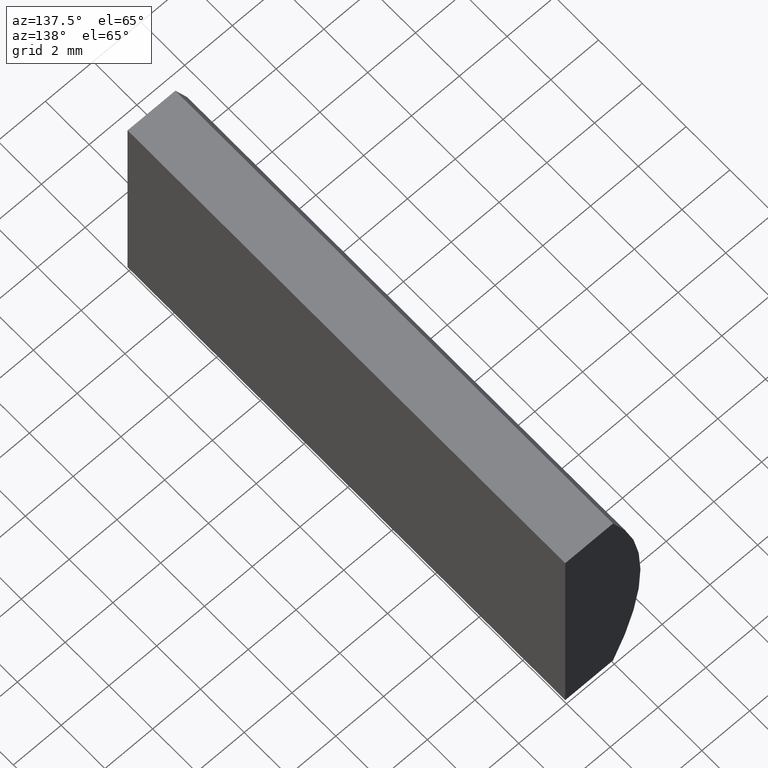
[diagram: clean part render]
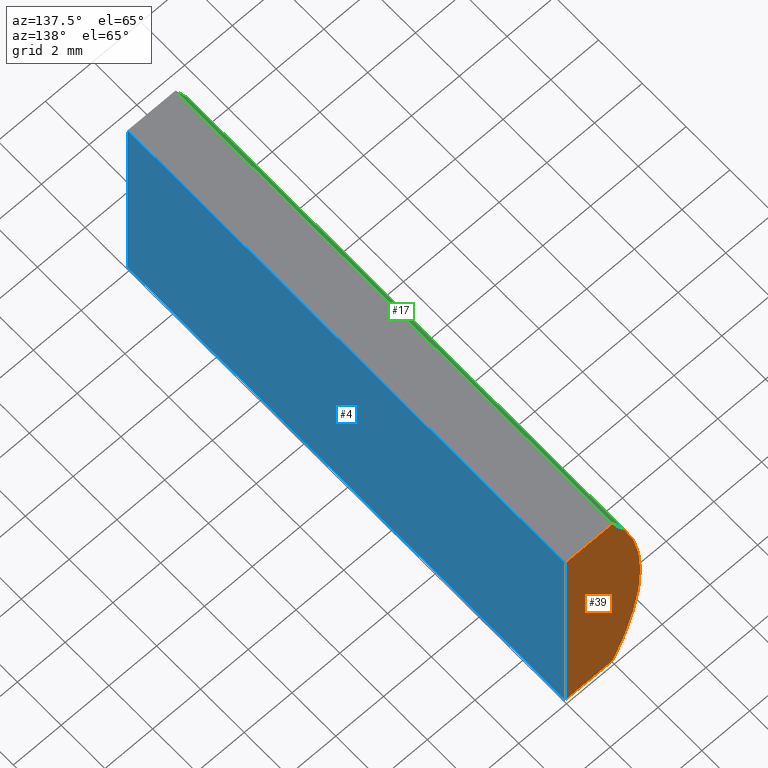
[diagram: same view with three faces highlighted in distinct colors, each labeled with its STEP entity id]
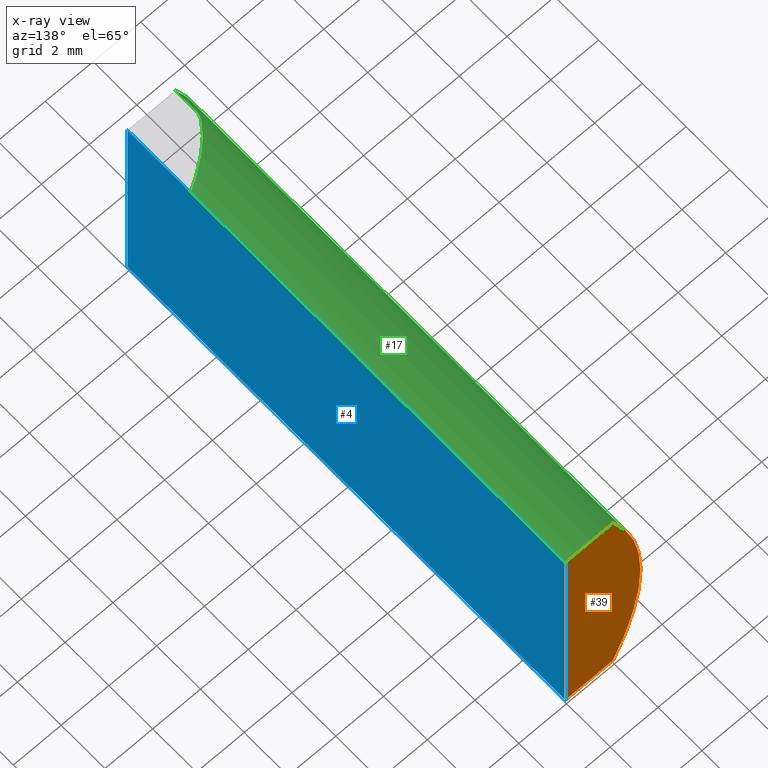
[diagram: x-ray of the same camera — body ghosted, the three highlighted faces saturated]
A machine part, auxiliary view with three faces highlighted in distinct colors.
The next image is the same camera in x-ray (body ghosted, the three faces saturated) — at least one of them is partly hidden behind the body in this view.
Their STEP definitions:

[orange] entity #39 — the highlighted planar face has unit normal (0, 1, 0).
#5 = CIRCLE ( 'NONE', #42, 11.45000000000000100 ) ;
#9 = LINE ( 'NONE', #197, #173 ) ;
#20 = CARTESIAN_POINT ( 'NONE',  ( -3.944795665148738400, 20.00000000000000000, -5.000000000000000000 ) ) ;
#28 = PLANE ( 'NONE',  #97 ) ;
#32 = DIRECTION ( 'NONE',  ( 0.0000000000000000000, -0.0000000000000000000, 1.000000000000000000 ) ) ;
#33 = ORIENTED_EDGE ( 'NONE', *, *, #66, .T. ) ;
#34 = EDGE_CURVE ( 'NONE', #117, #145, #9, .T. ) ;
#35 = ORIENTED_EDGE ( 'NONE', *, *, #34, .T. ) ;
#39 = ADVANCED_FACE ( 'NONE', ( #178 ), #28, .T. ) ;
#40 = DIRECTION ( 'NONE',  ( 0.0000000000000000000, 1.000000000000000000, 0.0000000000000000000 ) ) ;
#42 = AXIS2_PLACEMENT_3D ( 'NONE', #73, #40, #116 ) ;
#43 = CARTESIAN_POINT ( 'NONE',  ( -5.945402443392432600, 20.00000000000000000, 5.000000000000000000 ) ) ;
#46 = CARTESIAN_POINT ( 'NONE',  ( 4.355204334851265500, 20.00000000000000000, 4.286263797015675000E-017 ) ) ;
#49 = EDGE_LOOP ( 'NONE', ( #103, #35, #201, #33 ) ) ;
#53 = DIRECTION ( 'NONE',  ( 0.0000000000000000000, 1.000000000000000000, 0.0000000000000000000 ) ) ;
#60 = EDGE_CURVE ( 'NONE', #145, #70, #170, .T. ) ;
#66 = EDGE_CURVE ( 'NONE', #70, #146, #105, .T. ) ;
#70 = VERTEX_POINT ( 'NONE', #20 ) ;
#72 = CARTESIAN_POINT ( 'NONE',  ( -5.945402443392432600, 20.00000000000000000, -5.000000000000000000 ) ) ;
#73 = CARTESIAN_POINT ( 'NONE',  ( 4.355204334851265500, 20.00000000000000000, 4.286263797015675000E-017 ) ) ;
#76 = CARTESIAN_POINT ( 'NONE',  ( -5.945402443392432600, 20.00000000000000000, -5.000000000000000000 ) ) ;
#97 = AXIS2_PLACEMENT_3D ( 'NONE', #46, #53, #32 ) ;
#103 = ORIENTED_EDGE ( 'NONE', *, *, #166, .T. ) ;
#105 = LINE ( 'NONE', #76, #204 ) ;
#110 = CARTESIAN_POINT ( 'NONE',  ( -3.944795665148738400, 20.00000000000000000, -5.000000000000000000 ) ) ;
#116 = DIRECTION ( 'NONE',  ( 0.0000000000000000000, 0.0000000000000000000, 1.000000000000000000 ) ) ;
#117 = VERTEX_POINT ( 'NONE', #43 ) ;
#119 = VECTOR ( 'NONE', #163, 1000.000000000000000 ) ;
#145 = VERTEX_POINT ( 'NONE', #199 ) ;
#146 = VERTEX_POINT ( 'NONE', #72 ) ;
#163 = DIRECTION ( 'NONE',  ( -3.469446951953614200E-016, -0.0000000000000000000, -1.000000000000000000 ) ) ;
#166 = EDGE_CURVE ( 'NONE', #146, #117, #5, .T. ) ;
#170 = LINE ( 'NONE', #110, #119 ) ;
#173 = VECTOR ( 'NONE', #176, 1000.000000000000000 ) ;
#176 = DIRECTION ( 'NONE',  ( 1.000000000000000000, 0.0000000000000000000, 0.0000000000000000000 ) ) ;
#178 = FACE_OUTER_BOUND ( 'NONE', #49, .T. ) ;
#190 = DIRECTION ( 'NONE',  ( -1.000000000000000000, -0.0000000000000000000, -0.0000000000000000000 ) ) ;
#197 = CARTESIAN_POINT ( 'NONE',  ( -5.945402443392432600, 20.00000000000000000, 5.000000000000000000 ) ) ;
#199 = CARTESIAN_POINT ( 'NONE',  ( -3.944795665148734800, 20.00000000000000000, 5.000000000000000000 ) ) ;
#201 = ORIENTED_EDGE ( 'NONE', *, *, #60, .T. ) ;
#204 = VECTOR ( 'NONE', #190, 1000.000000000000000 ) ;

[blue] entity #4 — the highlighted planar face has unit normal (-1, 0, 0).
#4 = ADVANCED_FACE ( 'NONE', ( #135 ), #16, .F. ) ;
#13 = VECTOR ( 'NONE', #142, 1000.000000000000000 ) ;
#16 = PLANE ( 'NONE',  #196 ) ;
#20 = CARTESIAN_POINT ( 'NONE',  ( -3.944795665148738400, 20.00000000000000000, -5.000000000000000000 ) ) ;
#25 = VERTEX_POINT ( 'NONE', #30 ) ;
#26 = DIRECTION ( 'NONE',  ( -1.000000000000000000, 0.0000000000000000000, 3.469446951953614200E-016 ) ) ;
#29 = EDGE_CURVE ( 'NONE', #145, #136, #86, .T. ) ;
#30 = CARTESIAN_POINT ( 'NONE',  ( -3.944795665148738400, 0.0000000000000000000, -5.000000000000000000 ) ) ;
#37 = EDGE_LOOP ( 'NONE', ( #81, #165, #91, #99 ) ) ;
#50 = EDGE_CURVE ( 'NONE', #136, #25, #83, .T. ) ;
#60 = EDGE_CURVE ( 'NONE', #145, #70, #170, .T. ) ;
#68 = EDGE_CURVE ( 'NONE', #70, #25, #172, .T. ) ;
#70 = VERTEX_POINT ( 'NONE', #20 ) ;
#81 = ORIENTED_EDGE ( 'NONE', *, *, #50, .T. ) ;
#82 = CARTESIAN_POINT ( 'NONE',  ( -3.944795665148738400, 0.0000000000000000000, -5.000000000000000000 ) ) ;
#83 = LINE ( 'NONE', #82, #182 ) ;
#85 = VECTOR ( 'NONE', #130, 1000.000000000000000 ) ;
#86 = LINE ( 'NONE', #151, #13 ) ;
#89 = DIRECTION ( 'NONE',  ( 3.469446951953614200E-016, 0.0000000000000000000, 1.000000000000000000 ) ) ;
#91 = ORIENTED_EDGE ( 'NONE', *, *, #60, .F. ) ;
#96 = CARTESIAN_POINT ( 'NONE',  ( -3.944795665148738400, 20.00000000000000000, -5.000000000000000000 ) ) ;
#99 = ORIENTED_EDGE ( 'NONE', *, *, #29, .T. ) ;
#110 = CARTESIAN_POINT ( 'NONE',  ( -3.944795665148738400, 20.00000000000000000, -5.000000000000000000 ) ) ;
#112 = CARTESIAN_POINT ( 'NONE',  ( -3.944795665148738400, 20.00000000000000000, -5.000000000000000000 ) ) ;
#113 = CARTESIAN_POINT ( 'NONE',  ( -3.944795665148734800, 0.0000000000000000000, 5.000000000000000000 ) ) ;
#119 = VECTOR ( 'NONE', #163, 1000.000000000000000 ) ;
#130 = DIRECTION ( 'NONE',  ( -0.0000000000000000000, -1.000000000000000000, -0.0000000000000000000 ) ) ;
#135 = FACE_OUTER_BOUND ( 'NONE', #37, .T. ) ;
#136 = VERTEX_POINT ( 'NONE', #113 ) ;
#142 = DIRECTION ( 'NONE',  ( -0.0000000000000000000, -1.000000000000000000, -0.0000000000000000000 ) ) ;
#145 = VERTEX_POINT ( 'NONE', #199 ) ;
#151 = CARTESIAN_POINT ( 'NONE',  ( -3.944795665148734800, 20.00000000000000000, 5.000000000000000000 ) ) ;
#162 = DIRECTION ( 'NONE',  ( -3.469446951953614200E-016, -0.0000000000000000000, -1.000000000000000000 ) ) ;
#163 = DIRECTION ( 'NONE',  ( -3.469446951953614200E-016, -0.0000000000000000000, -1.000000000000000000 ) ) ;
#165 = ORIENTED_EDGE ( 'NONE', *, *, #68, .F. ) ;
#170 = LINE ( 'NONE', #110, #119 ) ;
#172 = LINE ( 'NONE', #112, #85 ) ;
#182 = VECTOR ( 'NONE', #162, 1000.000000000000000 ) ;
#196 = AXIS2_PLACEMENT_3D ( 'NONE', #96, #26, #89 ) ;
#199 = CARTESIAN_POINT ( 'NONE',  ( -3.944795665148734800, 20.00000000000000000, 5.000000000000000000 ) ) ;

[green] entity #17 — the highlighted cylindrical surface (partial cylindrical patch) has radius 11.45 mm, axis along (-0, -1, -0).
#2 = LINE ( 'NONE', #203, #44 ) ;
#5 = CIRCLE ( 'NONE', #42, 11.45000000000000100 ) ;
#12 = EDGE_LOOP ( 'NONE', ( #21, #187, #122, #128 ) ) ;
#17 = ADVANCED_FACE ( 'NONE', ( #19 ), #127, .T. ) ;
#19 = FACE_OUTER_BOUND ( 'NONE', #12, .T. ) ;
#21 = ORIENTED_EDGE ( 'NONE', *, *, #132, .T. ) ;
#40 = DIRECTION ( 'NONE',  ( 0.0000000000000000000, 1.000000000000000000, 0.0000000000000000000 ) ) ;
#42 = AXIS2_PLACEMENT_3D ( 'NONE', #73, #40, #116 ) ;
#43 = CARTESIAN_POINT ( 'NONE',  ( -5.945402443392432600, 20.00000000000000000, 5.000000000000000000 ) ) ;
#44 = VECTOR ( 'NONE', #167, 1000.000000000000000 ) ;
#47 = CARTESIAN_POINT ( 'NONE',  ( -5.945402443392432600, 0.0000000000000000000, 5.000000000000000000 ) ) ;
#57 = DIRECTION ( 'NONE',  ( 0.0000000000000000000, 0.0000000000000000000, -1.000000000000000000 ) ) ;
#67 = DIRECTION ( 'NONE',  ( 0.0000000000000000000, 0.0000000000000000000, 1.000000000000000000 ) ) ;
#72 = CARTESIAN_POINT ( 'NONE',  ( -5.945402443392432600, 20.00000000000000000, -5.000000000000000000 ) ) ;
#73 = CARTESIAN_POINT ( 'NONE',  ( 4.355204334851265500, 20.00000000000000000, 4.286263797015675000E-017 ) ) ;
#75 = EDGE_CURVE ( 'NONE', #117, #141, #169, .T. ) ;
#79 = VECTOR ( 'NONE', #104, 1000.000000000000000 ) ;
#80 = VERTEX_POINT ( 'NONE', #148 ) ;
#88 = CARTESIAN_POINT ( 'NONE',  ( 4.355204334851265500, 0.0000000000000000000, 4.286263797015675000E-017 ) ) ;
#90 = AXIS2_PLACEMENT_3D ( 'NONE', #121, #126, #57 ) ;
#104 = DIRECTION ( 'NONE',  ( -0.0000000000000000000, -1.000000000000000000, -0.0000000000000000000 ) ) ;
#108 = EDGE_CURVE ( 'NONE', #146, #80, #2, .T. ) ;
#116 = DIRECTION ( 'NONE',  ( 0.0000000000000000000, 0.0000000000000000000, 1.000000000000000000 ) ) ;
#117 = VERTEX_POINT ( 'NONE', #43 ) ;
#121 = CARTESIAN_POINT ( 'NONE',  ( 4.355204334851265500, 20.00000000000000000, 4.286263797015675000E-017 ) ) ;
#122 = ORIENTED_EDGE ( 'NONE', *, *, #166, .F. ) ;
#126 = DIRECTION ( 'NONE',  ( -0.0000000000000000000, -1.000000000000000000, -0.0000000000000000000 ) ) ;
#127 = CYLINDRICAL_SURFACE ( 'NONE', #90, 11.45000000000000100 ) ;
#128 = ORIENTED_EDGE ( 'NONE', *, *, #108, .T. ) ;
#132 = EDGE_CURVE ( 'NONE', #80, #141, #161, .T. ) ;
#139 = AXIS2_PLACEMENT_3D ( 'NONE', #88, #168, #67 ) ;
#141 = VERTEX_POINT ( 'NONE', #47 ) ;
#146 = VERTEX_POINT ( 'NONE', #72 ) ;
#148 = CARTESIAN_POINT ( 'NONE',  ( -5.945402443392432600, 0.0000000000000000000, -5.000000000000000000 ) ) ;
#161 = CIRCLE ( 'NONE', #139, 11.45000000000000100 ) ;
#166 = EDGE_CURVE ( 'NONE', #146, #117, #5, .T. ) ;
#167 = DIRECTION ( 'NONE',  ( -0.0000000000000000000, -1.000000000000000000, -0.0000000000000000000 ) ) ;
#168 = DIRECTION ( 'NONE',  ( 0.0000000000000000000, 1.000000000000000000, 0.0000000000000000000 ) ) ;
#169 = LINE ( 'NONE', #193, #79 ) ;
#187 = ORIENTED_EDGE ( 'NONE', *, *, #75, .F. ) ;
#193 = CARTESIAN_POINT ( 'NONE',  ( -5.945402443392432600, 20.00000000000000000, 5.000000000000000000 ) ) ;
#203 = CARTESIAN_POINT ( 'NONE',  ( -5.945402443392432600, 20.00000000000000000, -5.000000000000000000 ) ) ;